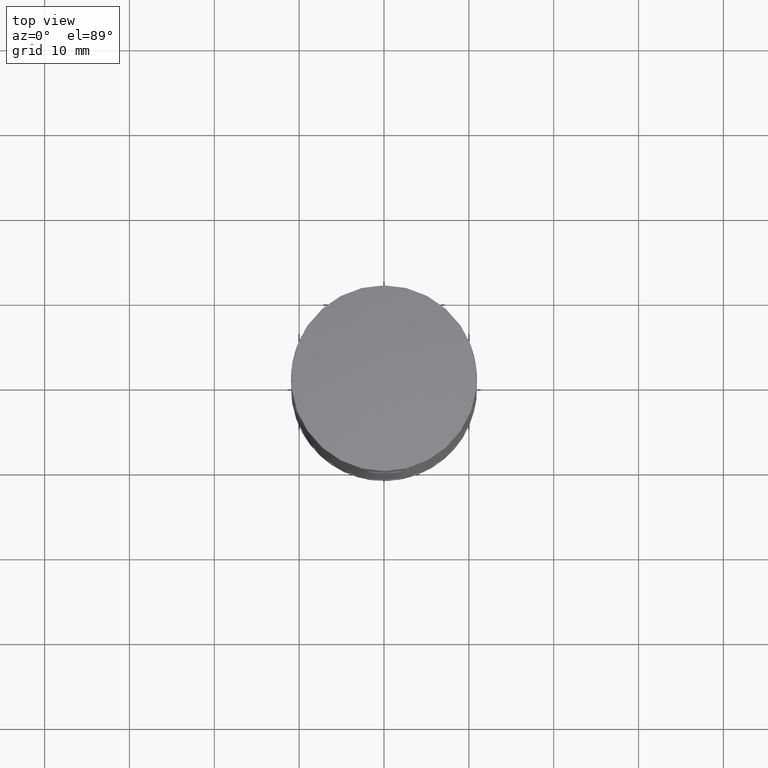
[diagram: clean part render]
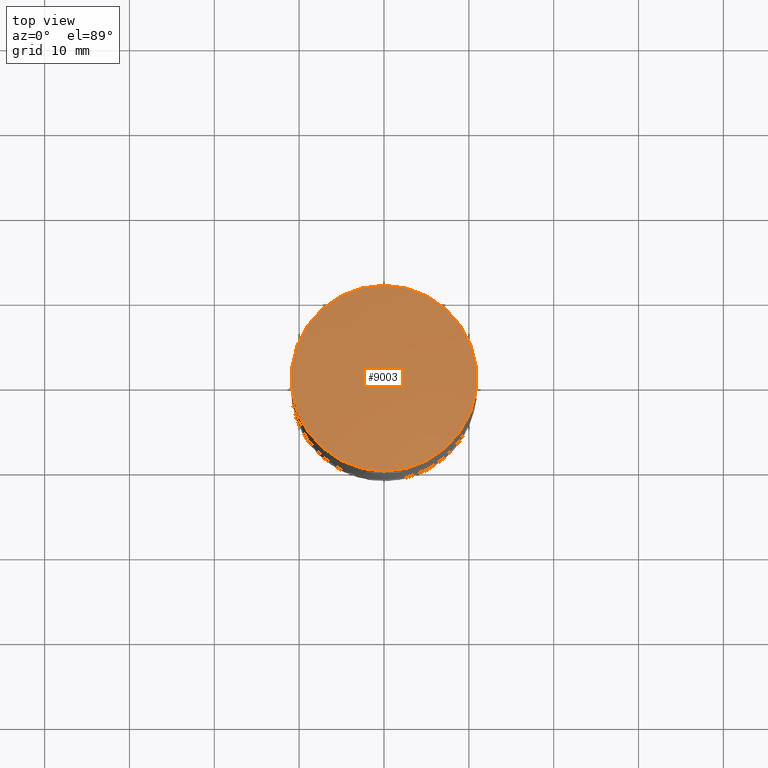
[diagram: same view with one face highlighted and labeled with its STEP entity id]
A machine part, top view. The second image highlights one B-rep face of the part: STEP entity #9003.
In plain terms, the highlighted spherical surface has radius 60.4512 mm.
Its self-contained STEP definition (entity closure, byte-faithful):
#242 = CARTESIAN_POINT ( 'NONE',  ( 0.000000000000000000, -6.776263578034403945E-17, 31.00000000000000000 ) ) ;
#1196 = DIRECTION ( 'NONE',  ( 0.000000000000000000, 1.000000000000000000, -5.739247661468747977E-17 ) ) ;
#3592 = CARTESIAN_POINT ( 'NONE',  ( 0.000000000000000000, 1.540743955509788682E-30, -28.45124999999978144 ) ) ;
#3771 = AXIS2_PLACEMENT_3D ( 'NONE', #242, #8667, #12203 ) ;
#4349 = EDGE_LOOP ( 'NONE', ( #5997 ) ) ;
#5326 = SPHERICAL_SURFACE ( 'NONE', #13017, 60.45124999999978144 ) ;
#5619 = CIRCLE ( 'NONE', #3771, 10.94999999999998685 ) ;
#5997 = ORIENTED_EDGE ( 'NONE', *, *, #14425, .T. ) ;
#8667 = DIRECTION ( 'NONE',  ( -0.000000000000000000, 6.776263578034402713E-17, 1.000000000000000000 ) ) ;
#9003 = ADVANCED_FACE ( 'NONE', ( #13259 ), #5326, .T. ) ;
#10084 = VERTEX_POINT ( 'NONE', #12693 ) ;
#12203 = DIRECTION ( 'NONE',  ( 0.000000000000000000, -1.000000000000000000, 0.000000000000000000 ) ) ;
#12693 = CARTESIAN_POINT ( 'NONE',  ( 0.000000000000000000, -10.94999999999998685, 31.00000000000000000 ) ) ;
#13017 = AXIS2_PLACEMENT_3D ( 'NONE', #3592, #13304, #1196 ) ;
#13259 = FACE_OUTER_BOUND ( 'NONE', #4349, .T. ) ;
#13304 = DIRECTION ( 'NONE',  ( -1.000000000000000000, 0.000000000000000000, 0.000000000000000000 ) ) ;
#14425 = EDGE_CURVE ( 'NONE', #10084, #10084, #5619, .T. ) ;